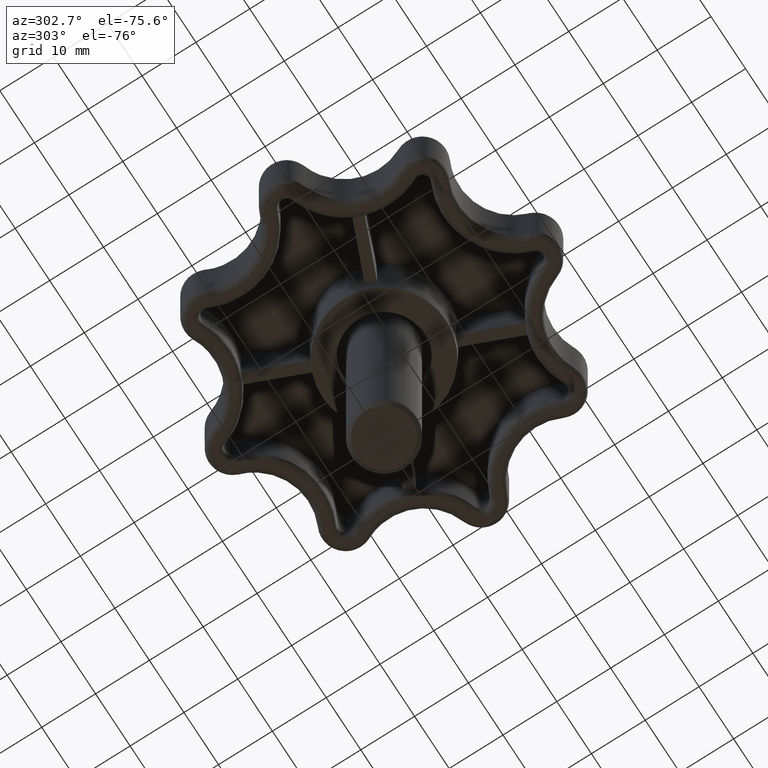
[diagram: clean part render]
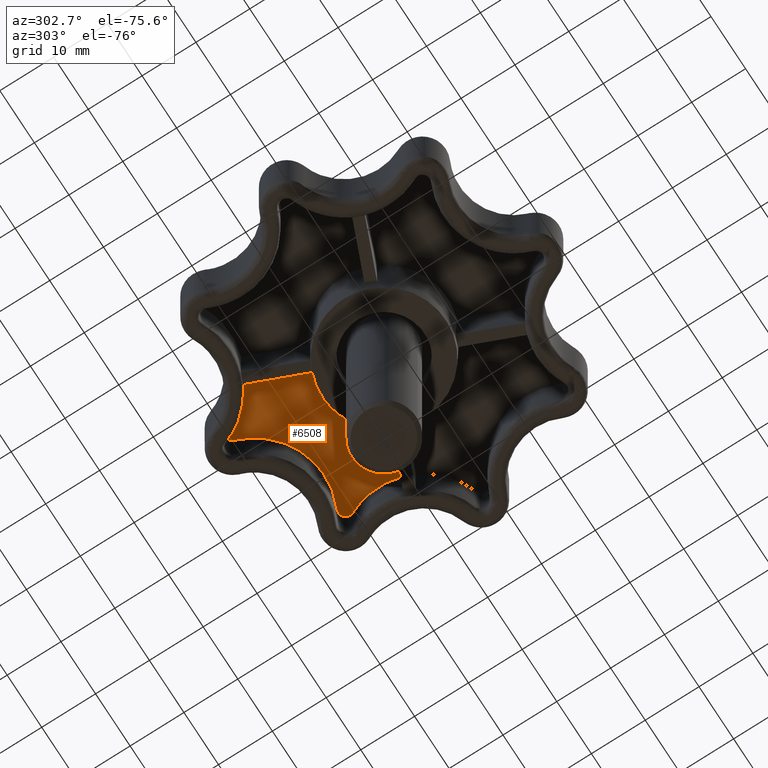
[diagram: same view with one face highlighted and labeled with its STEP entity id]
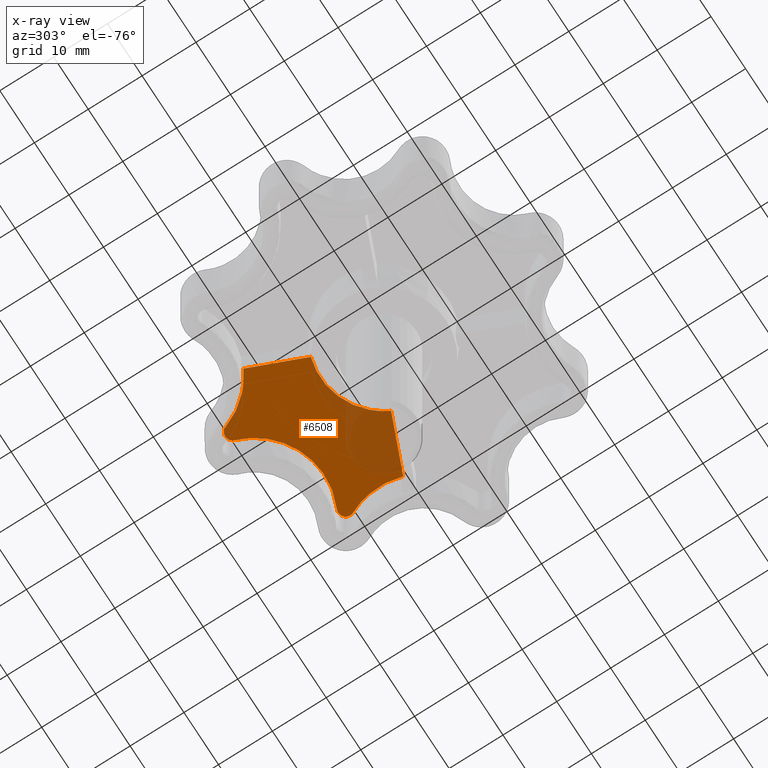
[diagram: x-ray of the same camera — body ghosted, the highlighted face saturated]
A machine part, auxiliary view. The second image highlights one B-rep face of the part: STEP entity #6508.
The next image is the same camera in x-ray: the body ghosted, the highlighted face saturated — about 27% of this face is hidden behind the body in this view.
In plain terms, the highlighted face is a freeform B-spline surface patch.
Its self-contained STEP definition (entity closure, byte-faithful):
#922=CARTESIAN_POINT('',(4.019501548865029,11.137282172995571,12.999999428991950));
#923=VERTEX_POINT('',#922);
#929=CARTESIAN_POINT('',(10.517352443169999,5.438818331446870,13.0));
#930=VERTEX_POINT('',#929);
#931=CARTESIAN_POINT('',(4.019501548865029,11.137282172995572,12.999999428991948));
#932=CARTESIAN_POINT('',(8.385329129692851,9.561633111864293,13.000000000000004));
#933=CARTESIAN_POINT('',(10.517352443170010,5.438818331446871,13.0));
#941=(BOUNDED_CURVE()B_SPLINE_CURVE(2,(#931,#932,#933),.UNSPECIFIED.,.F.,.U.)B_SPLINE_CURVE_WITH_KNOTS((3,3),(0.468296614849724,1.0),.UNSPECIFIED.)CURVE()GEOMETRIC_REPRESENTATION_ITEM()RATIONAL_B_SPLINE_CURVE((0.882623841927877,0.874677550135837,1.0))REPRESENTATION_ITEM(''));
#942=EDGE_CURVE('',#923,#930,#941,.T.);
#1165=CARTESIAN_POINT('',(-3.591062353553760,11.282717688093820,13.0));
#1166=VERTEX_POINT('',#1165);
#1174=CARTESIAN_POINT('',(-3.591062353553764,11.282717688093840,13.0));
#1175=CARTESIAN_POINT('',(0.238903679917271,12.501718926838034,13.0));
#1176=CARTESIAN_POINT('',(4.019501548865029,11.137282172995572,12.999999428991948));
#1184=(BOUNDED_CURVE()B_SPLINE_CURVE(2,(#1174,#1175,#1176),.UNSPECIFIED.,.F.,.U.)B_SPLINE_CURVE_WITH_KNOTS((3,3),(0.0,0.468296614849724),.UNSPECIFIED.)CURVE()GEOMETRIC_REPRESENTATION_ITEM()RATIONAL_B_SPLINE_CURVE((1.0,0.889622521362217,0.882623841927877))REPRESENTATION_ITEM(''));
#1185=EDGE_CURVE('',#1166,#923,#1184,.T.);
#1683=CARTESIAN_POINT('',(-7.701240205003630,21.205557080710449,13.0));
#1684=VERTEX_POINT('',#1683);
#1685=CARTESIAN_POINT('',(-3.591062353553760,11.282717688093820,13.0));
#1686=CARTESIAN_POINT('',(-7.701240205003630,21.205557080710449,13.0));
#1687=QUASI_UNIFORM_CURVE('',1,(#1685,#1686),.UNSPECIFIED.,.F.,.U.);
#1688=EDGE_CURVE('',#1166,#1684,#1687,.T.);
#1743=CARTESIAN_POINT('',(20.440190644892599,9.548995024481970,13.0));
#1744=VERTEX_POINT('',#1743);
#1745=CARTESIAN_POINT('',(20.440190644892599,9.548995024481970,13.0));
#1746=CARTESIAN_POINT('',(10.517352443169999,5.438818331446870,13.0));
#1747=QUASI_UNIFORM_CURVE('',1,(#1745,#1746),.UNSPECIFIED.,.F.,.U.);
#1748=EDGE_CURVE('',#1744,#930,#1747,.T.);
#5613=CARTESIAN_POINT('',(-1.288573708675040,28.579730805842001,13.0));
#5614=VERTEX_POINT('',#5613);
#5621=CARTESIAN_POINT('',(1.288570099639634,28.579728794560801,13.0));
#5622=VERTEX_POINT('',#5621);
#5628=CARTESIAN_POINT('',(-1.288573708675040,28.579730805842001,13.0));
#5629=CARTESIAN_POINT('',(-0.972904599403359,29.500000099595503,12.999999999999996));
#5630=CARTESIAN_POINT('',(-0.000001557446014,29.499999340312460,13.0));
#5631=CARTESIAN_POINT('',(0.972901484511330,29.499998581029399,12.999999999999996));
#5632=CARTESIAN_POINT('',(1.288570099639634,28.579728794560801,13.0));
#5640=(BOUNDED_CURVE()B_SPLINE_CURVE(2,(#5628,#5629,#5630,#5631,#5632),.UNSPECIFIED.,.F.,.U.)B_SPLINE_CURVE_WITH_KNOTS((3,2,3),(0.0,0.500000000000000,1.0),.UNSPECIFIED.)CURVE()GEOMETRIC_REPRESENTATION_ITEM()RATIONAL_B_SPLINE_CURVE((1.0,0.813775387269220,1.0,0.813775387269220,1.0))REPRESENTATION_ITEM(''));
#5641=EDGE_CURVE('',#5614,#5622,#5640,.T.);
#5662=CARTESIAN_POINT('',(19.297763195846201,21.120081708960601,13.0));
#5663=VERTEX_POINT('',#5662);
#5669=CARTESIAN_POINT('',(19.297763195846201,21.120081708960601,13.0));
#5670=CARTESIAN_POINT('',(14.029143461859164,18.542761491391065,12.999999999999995));
#5671=CARTESIAN_POINT('',(8.610376167162984,20.787286922563869,13.0));
#5672=CARTESIAN_POINT('',(3.191608872466810,23.031812353736665,12.999999999999995));
#5673=CARTESIAN_POINT('',(1.288570099639627,28.579728794560801,13.0));
#5681=(BOUNDED_CURVE()B_SPLINE_CURVE(2,(#5669,#5670,#5671,#5672,#5673),.UNSPECIFIED.,.F.,.U.)B_SPLINE_CURVE_WITH_KNOTS((3,2,3),(0.0,0.500000000000000,1.0),.UNSPECIFIED.)CURVE()GEOMETRIC_REPRESENTATION_ITEM()RATIONAL_B_SPLINE_CURVE((1.0,0.911521425985837,1.0,0.911521425985837,1.0))REPRESENTATION_ITEM(''));
#5682=EDGE_CURVE('',#5663,#5622,#5681,.T.);
#5707=CARTESIAN_POINT('',(21.120079399763551,19.297758617167801,13.0));
#5708=VERTEX_POINT('',#5707);
#5714=CARTESIAN_POINT('',(19.297763195846201,21.120081708960591,13.0));
#5715=CARTESIAN_POINT('',(20.171705637939517,21.547599317990105,13.0));
#5716=CARTESIAN_POINT('',(20.859652996130801,20.859649370334029,13.0));
#5717=CARTESIAN_POINT('',(21.547600354322078,20.171699422677953,13.0));
#5718=CARTESIAN_POINT('',(21.120079399763551,19.297758617167801,13.0));
#5726=(BOUNDED_CURVE()B_SPLINE_CURVE(2,(#5714,#5715,#5716,#5717,#5718),.UNSPECIFIED.,.F.,.U.)B_SPLINE_CURVE_WITH_KNOTS((3,2,3),(0.0,0.500000000000000,1.0),.UNSPECIFIED.)CURVE()GEOMETRIC_REPRESENTATION_ITEM()RATIONAL_B_SPLINE_CURVE((1.0,0.813774872744575,1.0,0.813774872744575,1.0))REPRESENTATION_ITEM(''));
#5727=EDGE_CURVE('',#5663,#5708,#5726,.T.);
#6359=CARTESIAN_POINT('',(20.440190644892610,9.548995024481970,13.0));
#6360=CARTESIAN_POINT('',(18.803066086553919,14.561259632758697,12.999999999999996));
#6361=CARTESIAN_POINT('',(21.120079399763540,19.297758617167808,13.0));
#6369=(BOUNDED_CURVE()B_SPLINE_CURVE(2,(#6359,#6360,#6361),.UNSPECIFIED.,.F.,.U.)CURVE()GEOMETRIC_REPRESENTATION_ITEM()QUASI_UNIFORM_CURVE()RATIONAL_B_SPLINE_CURVE((1.0,0.926675166093291,1.0))REPRESENTATION_ITEM(''));
#6370=EDGE_CURVE('',#1744,#5708,#6369,.T.);
#6456=CARTESIAN_POINT('',(-1.288573708675040,28.579730805842001,13.0));
#6457=CARTESIAN_POINT('',(-2.999408690272227,23.592141407426162,13.000000000000004));
#6458=CARTESIAN_POINT('',(-7.701240205003626,21.205557080710442,13.0));
#6466=(BOUNDED_CURVE()B_SPLINE_CURVE(2,(#6456,#6457,#6458),.UNSPECIFIED.,.F.,.U.)CURVE()GEOMETRIC_REPRESENTATION_ITEM()QUASI_UNIFORM_CURVE()RATIONAL_B_SPLINE_CURVE((1.0,0.926675093065649,1.0))REPRESENTATION_ITEM(''));
#6467=EDGE_CURVE('',#5614,#1684,#6466,.T.);
#6492=CARTESIAN_POINT('',(-9.147729086654319,4.236962386689284,13.0));
#6493=CARTESIAN_POINT('',(22.703986946440811,4.236962386689284,13.0));
#6494=CARTESIAN_POINT('',(-9.147729086654319,30.701855930440921,13.0));
#6495=CARTESIAN_POINT('',(22.703986946440811,30.701855930440921,13.0));
#6496=B_SPLINE_SURFACE_WITH_KNOTS('',1,1,((#6492,#6494),(#6493,#6495)),.UNSPECIFIED.,.F.,.F.,.U.,(2,2),(2,2),(0.0,31.851716033095130),(0.0,26.464893543751629),.UNSPECIFIED.);
#6497=ORIENTED_EDGE('',*,*,#942,.F.);
#6498=ORIENTED_EDGE('',*,*,#1185,.F.);
#6499=ORIENTED_EDGE('',*,*,#1688,.T.);
#6500=ORIENTED_EDGE('',*,*,#6467,.F.);
#6501=ORIENTED_EDGE('',*,*,#5641,.T.);
#6502=ORIENTED_EDGE('',*,*,#5682,.F.);
#6503=ORIENTED_EDGE('',*,*,#5727,.T.);
#6504=ORIENTED_EDGE('',*,*,#6370,.F.);
#6505=ORIENTED_EDGE('',*,*,#1748,.T.);
#6506=EDGE_LOOP('',(#6497,#6498,#6499,#6500,#6501,#6502,#6503,#6504,#6505));
#6507=FACE_OUTER_BOUND('',#6506,.T.);
#6508=ADVANCED_FACE('',(#6507),#6496,.F.);